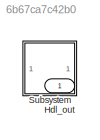
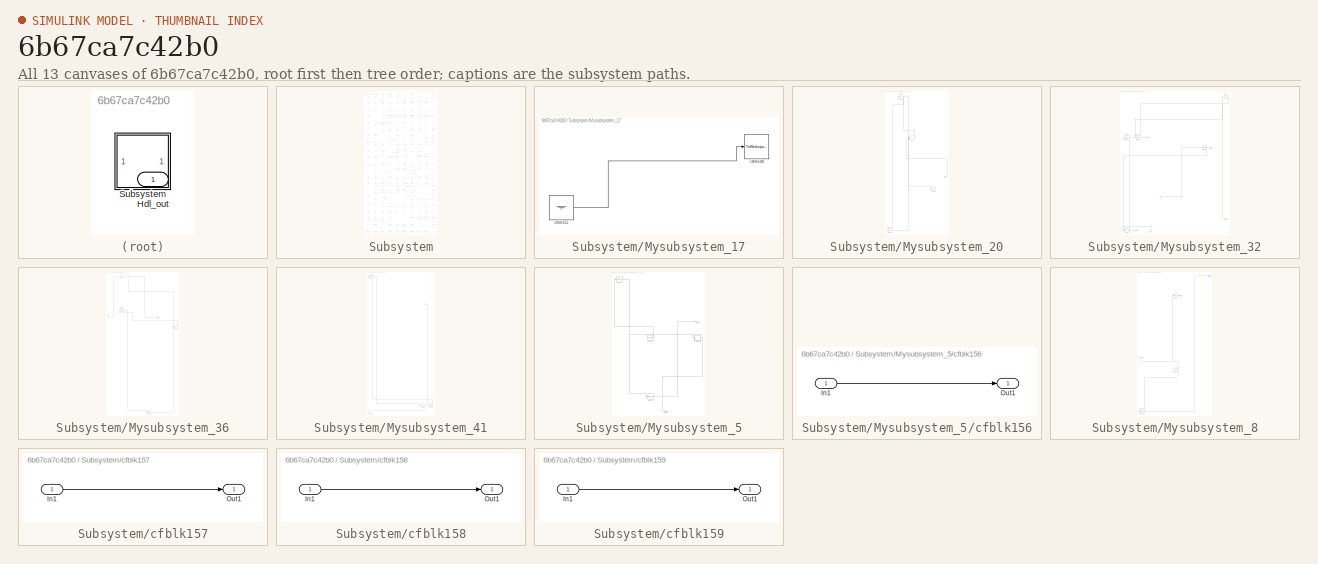
[diagram: thumbnail index - all 13 canvases of the model, root first then tree order]
MODEL slx_6b67ca7c42b0
KIND model
CONFIG AbsTol = auto
CONFIG EnableMultiTasking = off
CONFIG FixedStep = auto
CONFIG MaxStep = auto
CONFIG MinStep = auto
CONFIG RelTol = 1e-3
CONFIG SampleTimeConstraint = Unconstrained
CONFIG SolverName = VariableStepAuto
CONFIG StartTime = 0.0
CONFIG StopTime = 10.0
BLOCK [Outport] Hdl_out
  OutDataTypeStr = uint8
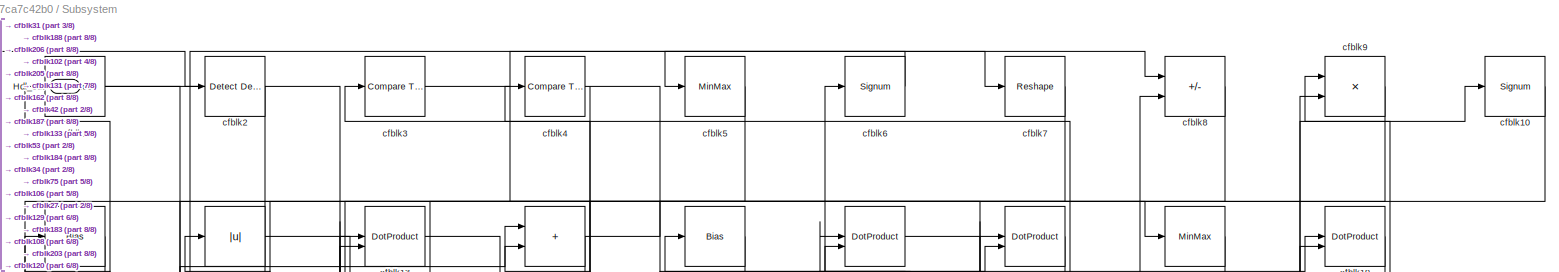
[diagram: Subsystem - part 1/8, full width, top band]
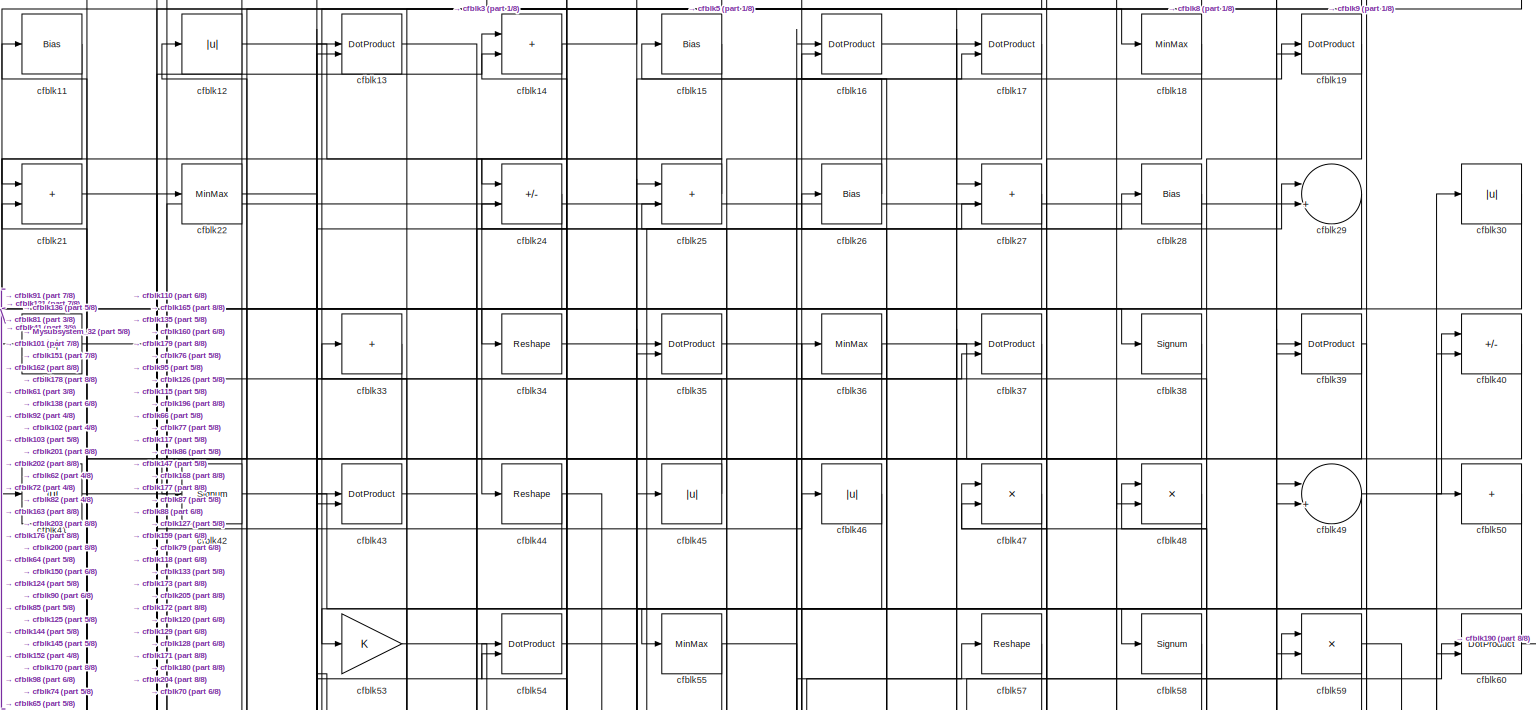
[diagram: Subsystem - part 2/8, full width, top band]
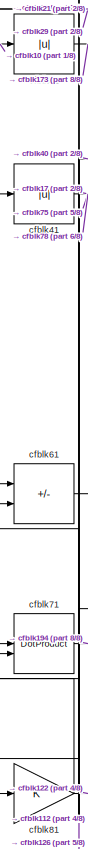
[diagram: Subsystem - part 3/8, top left region]
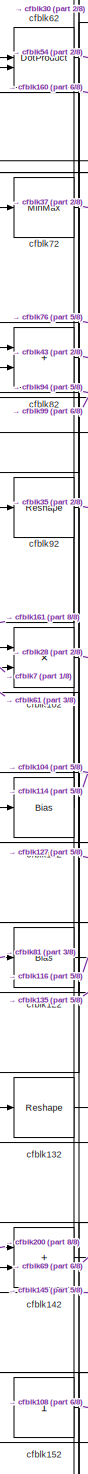
[diagram: Subsystem - part 4/8, middle left region]
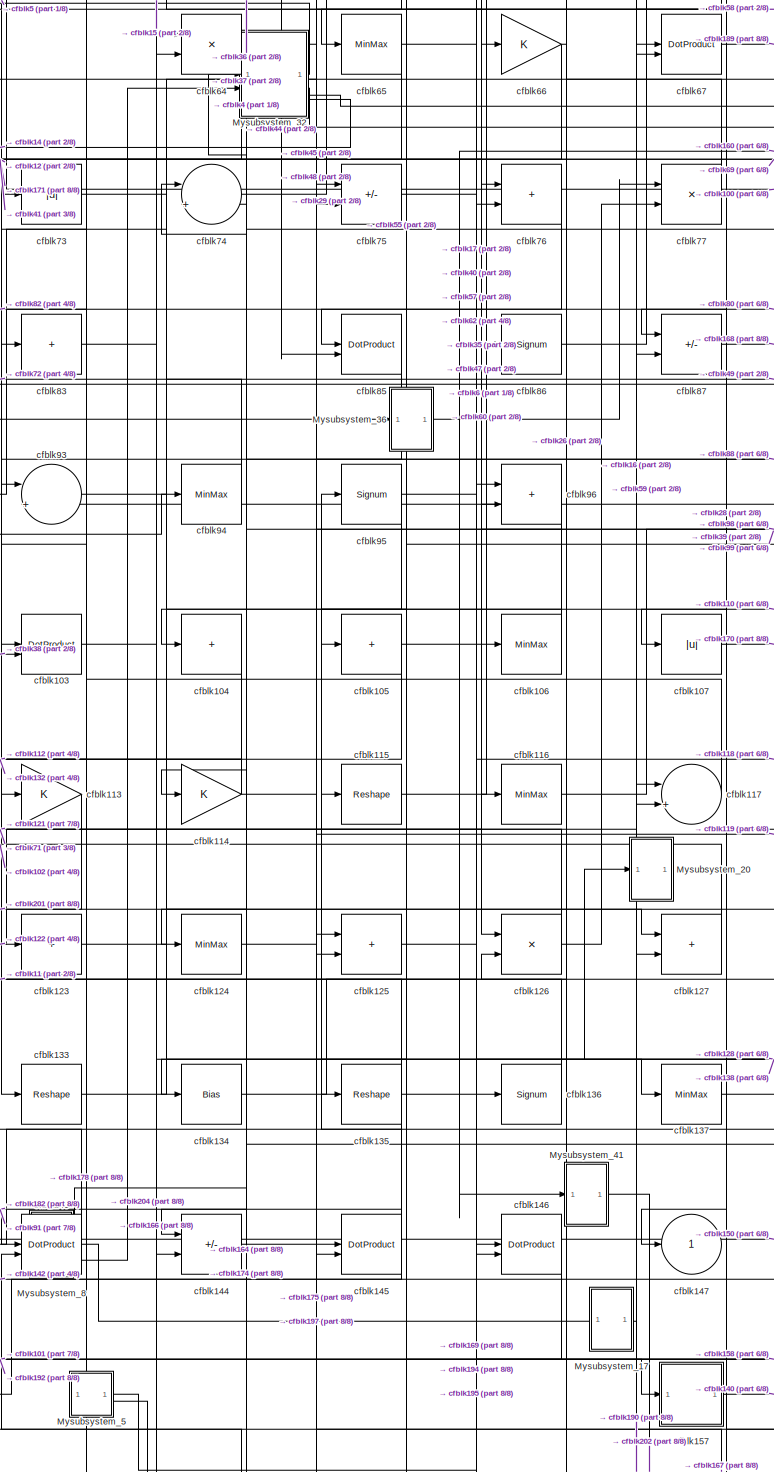
[diagram: Subsystem - part 5/8, central region]
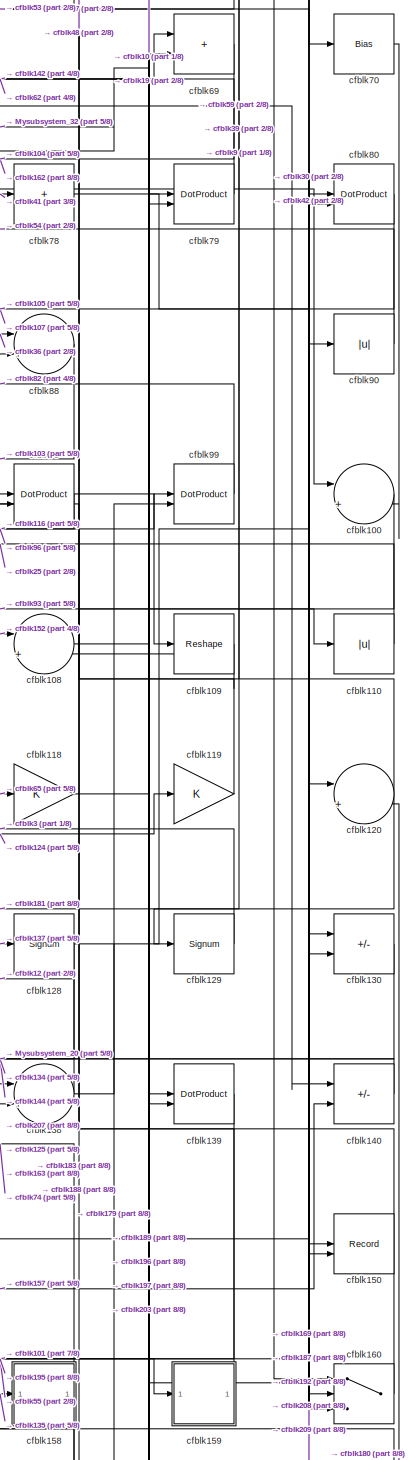
[diagram: Subsystem - part 6/8, middle right region]
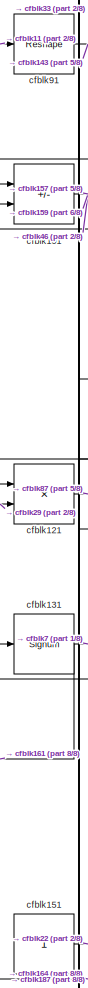
[diagram: Subsystem - part 7/8, middle left region]
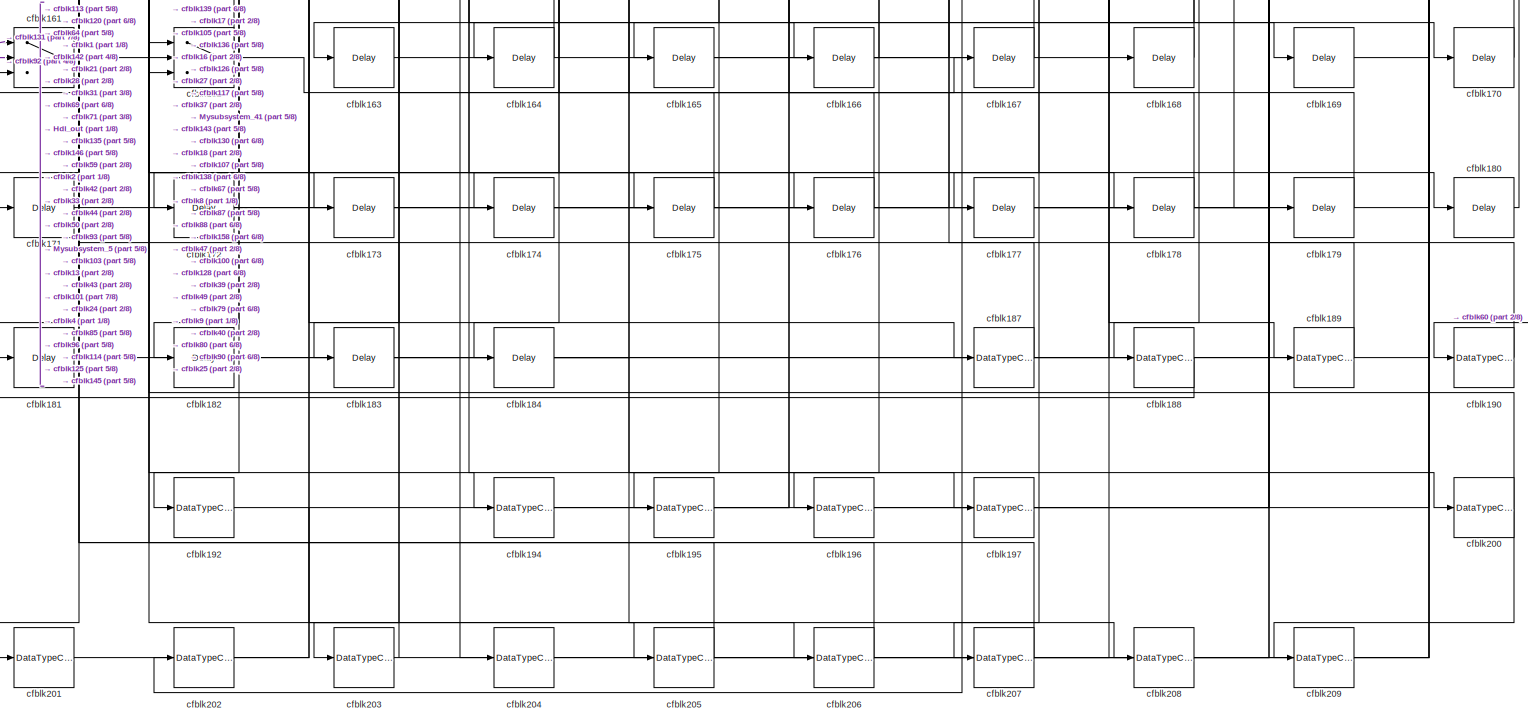
[diagram: Subsystem - part 8/8, full width, bottom band]
BLOCK [SubSystem] Subsystem
BLOCK [Outport] Subsystem/Hdl_out
  OutDataTypeStr = uint8
  Port = 2
BLOCK [SubSystem] Subsystem/Mysubsystem_17
  RTWFcnName = Mysubsystem_17
  RTWFcnNameOpts = User specified
  RTWFileNameOpts = Use function name
  RTWSystemCode = Reusable function
  TreatAsAtomicUnit = on
BLOCK [ToWorkspace] Subsystem/Mysubsystem_17/cfblk148
  MaxDataPoints = inf
  SampleTime = -1
  SaveFormat = Timeseries
  VariableName = simout
BLOCK [Ground] Subsystem/Mysubsystem_17/cfblk155
BLOCK [SubSystem] Subsystem/Mysubsystem_20
  RTWFcnName = Mysubsystem_20
  RTWFcnNameOpts = User specified
  RTWFileNameOpts = Use function name
  RTWSystemCode = Reusable function
  TreatAsAtomicUnit = on
BLOCK [Inport] Subsystem/Mysubsystem_20/In1
BLOCK [Scope] Subsystem/Mysubsystem_20/cfblk149
  Floating = off
  NumInputPorts = 1
  ScopeSpecificationString = Simulink.scopes.TimeScopeBlockCfg('CurrentConfiguration', extmgr.ConfigurationSet(extmgr.Configuration('Core','General UI',true),extmgr.Configuration('Core','Source UI',true),extmgr.Configuration('Sources','WiredSimulink',true,'DataLoggingVariableName','ScopeData2','DataLoggingSaveFormat','Array','DataLoggingLimitDataPoints',true,'DataLoggingDecimation','1'),extmgr.Configuration('Visuals','Time Do...<+868ch>
BLOCK [Delay] Subsystem/Mysubsystem_20/cfblk185
  InputPortMap = u0
  SampleTime = 1
BLOCK [Abs] Subsystem/Mysubsystem_20/cfblk56
  SaturateOnIntegerOverflow = off
BLOCK [Sum] Subsystem/Mysubsystem_20/cfblk97
  IconShape = rectangular
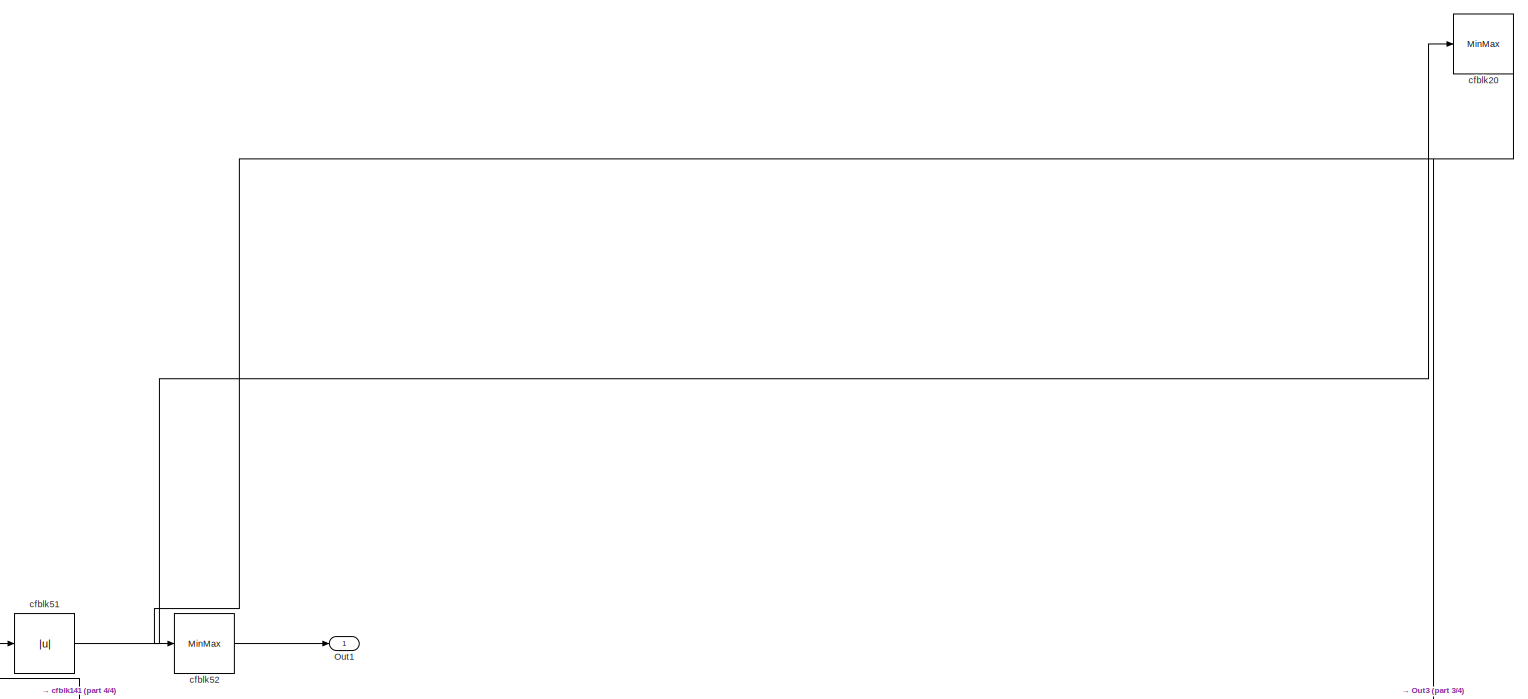
[diagram: Subsystem/Mysubsystem_32 - part 1/4, full width, top band]
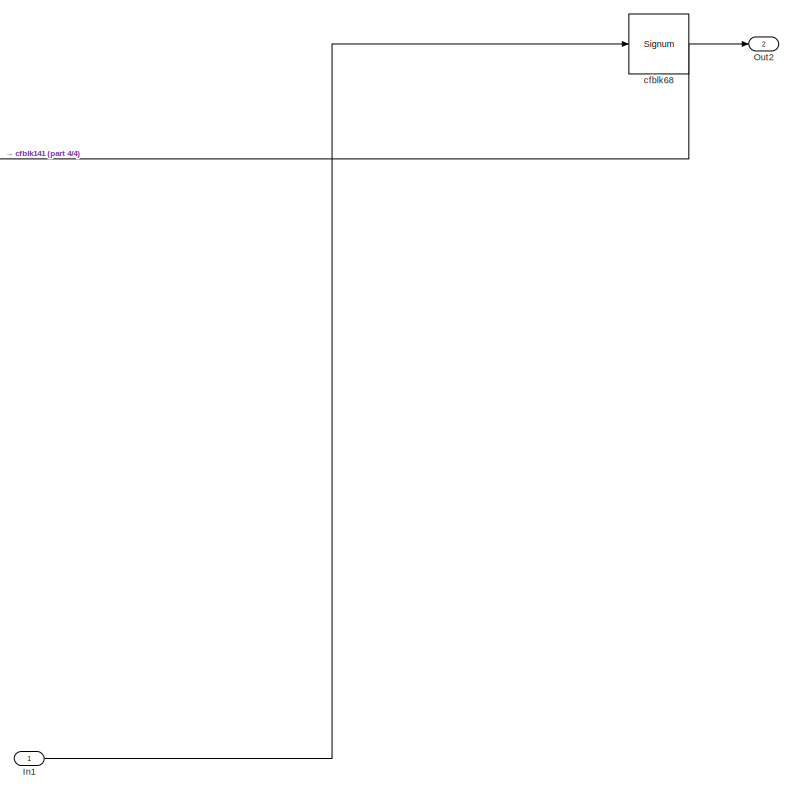
[diagram: Subsystem/Mysubsystem_32 - part 2/4, central region]
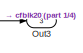
[diagram: Subsystem/Mysubsystem_32 - part 3/4, bottom right region]
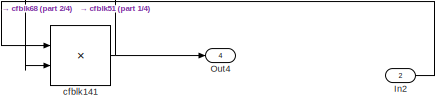
[diagram: Subsystem/Mysubsystem_32 - part 4/4, bottom left region]
BLOCK [SubSystem] Subsystem/Mysubsystem_32
  RTWFcnName = Mysubsystem_32
  RTWFcnNameOpts = User specified
  RTWFileNameOpts = Use function name
  RTWSystemCode = Reusable function
  TreatAsAtomicUnit = on
BLOCK [Inport] Subsystem/Mysubsystem_32/In1
BLOCK [Inport] Subsystem/Mysubsystem_32/In2
  Port = 2
BLOCK [Outport] Subsystem/Mysubsystem_32/Out1
BLOCK [Outport] Subsystem/Mysubsystem_32/Out2
  Port = 2
BLOCK [Outport] Subsystem/Mysubsystem_32/Out3
  Port = 3
BLOCK [Outport] Subsystem/Mysubsystem_32/Out4
  Port = 4
BLOCK [Product] Subsystem/Mysubsystem_32/cfblk141
  Inputs = */
  RndMeth = Zero
  SaturateOnIntegerOverflow = on
BLOCK [MinMax] Subsystem/Mysubsystem_32/cfblk20
BLOCK [Abs] Subsystem/Mysubsystem_32/cfblk51
  SaturateOnIntegerOverflow = off
BLOCK [MinMax] Subsystem/Mysubsystem_32/cfblk52
BLOCK [Signum] Subsystem/Mysubsystem_32/cfblk68
BLOCK [SubSystem] Subsystem/Mysubsystem_36
  RTWFcnName = Mysubsystem_36
  RTWFcnNameOpts = User specified
  RTWFileNameOpts = Use function name
  RTWSystemCode = Reusable function
  TreatAsAtomicUnit = on
BLOCK [Inport] Subsystem/Mysubsystem_36/In1
BLOCK [Outport] Subsystem/Mysubsystem_36/Out1
BLOCK [Delay] Subsystem/Mysubsystem_36/cfblk186
  InputPortMap = u0
  SampleTime = 1
BLOCK [Sum] Subsystem/Mysubsystem_36/cfblk23
  IconShape = rectangular
  Inputs = +
BLOCK [Signum] Subsystem/Mysubsystem_36/cfblk63
BLOCK [Sum] Subsystem/Mysubsystem_36/cfblk89
  IconShape = rectangular
  Inputs = +-
BLOCK [SubSystem] Subsystem/Mysubsystem_41
  RTWFcnName = Mysubsystem_41
  RTWFcnNameOpts = User specified
  RTWFileNameOpts = Use function name
  RTWSystemCode = Reusable function
  TreatAsAtomicUnit = on
BLOCK [Inport] Subsystem/Mysubsystem_41/In1
BLOCK [Outport] Subsystem/Mysubsystem_41/Out1
BLOCK [DataTypeConversion] Subsystem/Mysubsystem_41/cfblk198
  OutDataTypeStr = uint8
  RndMeth = Floor
  SaturateOnIntegerOverflow = off
BLOCK [DataTypeConversion] Subsystem/Mysubsystem_41/cfblk199
  OutDataTypeStr = uint8
  RndMeth = Floor
  SaturateOnIntegerOverflow = off
BLOCK [MinMax] Subsystem/Mysubsystem_41/cfblk32
BLOCK [SubSystem] Subsystem/Mysubsystem_5
  RTWFcnName = Mysubsystem_5
  RTWFcnNameOpts = User specified
  RTWFileNameOpts = Use function name
  RTWSystemCode = Reusable function
  TreatAsAtomicUnit = on
BLOCK [Outport] Subsystem/Mysubsystem_5/Out1
BLOCK [Outport] Subsystem/Mysubsystem_5/Out2
  Port = 2
BLOCK [MinMax] Subsystem/Mysubsystem_5/cfblk111
BLOCK [Reference] Subsystem/Mysubsystem_5/cfblk153  REF=hdlsllib/Sources/Counter
Free-Running
  SourceBlock = hdlsllib/Sources/Counter\nFree-Running
  SourceType = Counter Free-Running
BLOCK [SubSystem] Subsystem/Mysubsystem_5/cfblk156
  LibrarySourceBlock = hdlsllib/Ports &\nSubsystems/Subsystem
BLOCK [Inport] Subsystem/Mysubsystem_5/cfblk156/In1
BLOCK [Outport] Subsystem/Mysubsystem_5/cfblk156/Out1
BLOCK [DataTypeConversion] Subsystem/Mysubsystem_5/cfblk193
  OutDataTypeStr = uint8
  RndMeth = Floor
  SaturateOnIntegerOverflow = off
BLOCK [SubSystem] Subsystem/Mysubsystem_8
  RTWFcnName = Mysubsystem_8
  RTWFcnNameOpts = User specified
  RTWFileNameOpts = Use function name
  RTWSystemCode = Reusable function
  TreatAsAtomicUnit = on
BLOCK [Outport] Subsystem/Mysubsystem_8/Out1
BLOCK [Outport] Subsystem/Mysubsystem_8/Out2
  Port = 2
BLOCK [Reference] Subsystem/Mysubsystem_8/cfblk154  REF=hdlsllib/Sources/Counter
Limited
  SourceBlock = hdlsllib/Sources/Counter\nLimited
  SourceType = Counter Limited
BLOCK [DataTypeConversion] Subsystem/Mysubsystem_8/cfblk191
  OutDataTypeStr = uint8
  RndMeth = Floor
  SaturateOnIntegerOverflow = off
BLOCK [Signum] Subsystem/Mysubsystem_8/cfblk84
BLOCK [Outport] Subsystem/Mysubsystem_8/y
  Port = 3
BLOCK [Reference] Subsystem/cfblk1  REF=hdlsllib/Logic and Bit
Operations/Bit Slice
  SourceBlock = hdlsllib/Logic and Bit\nOperations/Bit Slice
  SourceType = Bit Slice
BLOCK [Signum] Subsystem/cfblk10
BLOCK [Sum] Subsystem/cfblk100
  Inputs = |++
  OutDataTypeStr = uint8
BLOCK [Sum] Subsystem/cfblk101
  IconShape = rectangular
  Inputs = +-
  OutDataTypeStr = uint8
BLOCK [Product] Subsystem/cfblk102
  Inputs = */
  OutDataTypeStr = uint8
  RndMeth = Zero
  SaturateOnIntegerOverflow = on
BLOCK [DotProduct] Subsystem/cfblk103
  OutDataTypeStr = uint8
BLOCK [Sum] Subsystem/cfblk104
  IconShape = rectangular
  Inputs = +
  OutDataTypeStr = uint8
BLOCK [Sum] Subsystem/cfblk105
  IconShape = rectangular
  Inputs = +
  OutDataTypeStr = uint8
BLOCK [MinMax] Subsystem/cfblk106
  OutDataTypeStr = uint8
BLOCK [Abs] Subsystem/cfblk107
  OutDataTypeStr = uint8
  SaturateOnIntegerOverflow = off
BLOCK [Sum] Subsystem/cfblk108
  Inputs = |++
  OutDataTypeStr = uint8
BLOCK [Reshape] Subsystem/cfblk109
BLOCK [Bias] Subsystem/cfblk11
  Bias = 0.0
  SaturateOnIntegerOverflow = off
BLOCK [Abs] Subsystem/cfblk110
  OutDataTypeStr = uint8
  SaturateOnIntegerOverflow = off
BLOCK [Bias] Subsystem/cfblk112
  Bias = 0.0
  SaturateOnIntegerOverflow = off
BLOCK [Gain] Subsystem/cfblk113
  OutDataTypeStr = uint8
BLOCK [Gain] Subsystem/cfblk114
  OutDataTypeStr = uint8
BLOCK [Reshape] Subsystem/cfblk115
BLOCK [MinMax] Subsystem/cfblk116
  OutDataTypeStr = uint8
BLOCK [Sum] Subsystem/cfblk117
  Inputs = |++
  OutDataTypeStr = uint8
BLOCK [Gain] Subsystem/cfblk118
  OutDataTypeStr = uint8
BLOCK [Gain] Subsystem/cfblk119
  OutDataTypeStr = uint8
BLOCK [Abs] Subsystem/cfblk12
  OutDataTypeStr = uint8
  SaturateOnIntegerOverflow = off
BLOCK [Sum] Subsystem/cfblk120
  Inputs = |++
  OutDataTypeStr = uint8
BLOCK [Product] Subsystem/cfblk121
  Inputs = */
  OutDataTypeStr = uint8
  RndMeth = Zero
  SaturateOnIntegerOverflow = on
BLOCK [Bias] Subsystem/cfblk122
  Bias = 0.0
  SaturateOnIntegerOverflow = off
BLOCK [Sum] Subsystem/cfblk123
  IconShape = rectangular
  Inputs = +
  OutDataTypeStr = uint8
BLOCK [MinMax] Subsystem/cfblk124
  OutDataTypeStr = uint8
BLOCK [Sum] Subsystem/cfblk125
  IconShape = rectangular
  OutDataTypeStr = uint8
BLOCK [Product] Subsystem/cfblk126
  Inputs = */
  OutDataTypeStr = uint8
  RndMeth = Zero
  SaturateOnIntegerOverflow = on
BLOCK [Sum] Subsystem/cfblk127
  IconShape = rectangular
  OutDataTypeStr = uint8
BLOCK [Signum] Subsystem/cfblk128
BLOCK [Signum] Subsystem/cfblk129
BLOCK [DotProduct] Subsystem/cfblk13
  OutDataTypeStr = uint8
BLOCK [Sum] Subsystem/cfblk130
  IconShape = rectangular
  Inputs = +-
  OutDataTypeStr = uint8
BLOCK [Signum] Subsystem/cfblk131
BLOCK [Reshape] Subsystem/cfblk132
BLOCK [Reshape] Subsystem/cfblk133
BLOCK [Bias] Subsystem/cfblk134
  Bias = 0.0
  SaturateOnIntegerOverflow = off
BLOCK [Reshape] Subsystem/cfblk135
BLOCK [Signum] Subsystem/cfblk136
BLOCK [MinMax] Subsystem/cfblk137
  OutDataTypeStr = uint8
BLOCK [Sum] Subsystem/cfblk138
  Inputs = |++
  OutDataTypeStr = uint8
BLOCK [DotProduct] Subsystem/cfblk139
  OutDataTypeStr = uint8
BLOCK [Sum] Subsystem/cfblk14
  IconShape = rectangular
  OutDataTypeStr = uint8
BLOCK [Sum] Subsystem/cfblk140
  IconShape = rectangular
  Inputs = +-
  OutDataTypeStr = uint8
BLOCK [Sum] Subsystem/cfblk142
  IconShape = rectangular
  OutDataTypeStr = uint8
BLOCK [DotProduct] Subsystem/cfblk143
  OutDataTypeStr = uint8
BLOCK [Sum] Subsystem/cfblk144
  IconShape = rectangular
  Inputs = +-
  OutDataTypeStr = uint8
BLOCK [DotProduct] Subsystem/cfblk145
  OutDataTypeStr = uint8
BLOCK [DotProduct] Subsystem/cfblk146
  OutDataTypeStr = uint8
BLOCK [Outport] Subsystem/cfblk147
  OutDataTypeStr = uint8
  VectorParamsAs1DForOutWhenUnconnected = off
BLOCK [Bias] Subsystem/cfblk15
  Bias = 0.0
  SaturateOnIntegerOverflow = off
BLOCK [Record] Subsystem/cfblk150
  CompatibilityTag = XY
  FileSettingsInternal = {"entries":[{"content":{"excelSettings":{"content":{},"type":"Streamout.ExcelSettings"}},"type":"Streamout.FileSettingStorage","uuid":""}],"packageUris":["http:\/\/schema.mathworks.com\/mf0\/streamout_blocks\/R2020a"],"version":"1.0"}
  Layout = [1 1]
  SignalsInternal = {"entries":[{"content":{"signals":[{"content":{"blockPath":[],"dimensions":[1],"domain":"","lineColor":"#a2142f","plots":[1],"port":1,"signalID":10674,"signalName":"cfblk53"},"type":"RecordBlkView.Signal","uuid":""},{"content":{"blockPath":[],"dimensions":[1],"domain":"","lineColor":"#139fff","plots":[1],"port":2,"signalID":10677,"signalName":"cfblk52"},"type":"RecordBlkView.Signal","uuid":""}]},"...<+142ch>
  VisualizationBindings = {"xyplotplugin":{"info":[{"series":[{"bindingParametersList":[{"parameter":"X-Axis","signalID":10674,"signalName":"cfblk53"},{"parameter":"Y-Axis","signalID":10677,"signalName":"cfblk52"}],"seriesID":14458}],"subplotID":1}]}}
  st = -1
BLOCK [Constant] Subsystem/cfblk151
  OutDataTypeStr = uint8
  SampleTime = -1
BLOCK [Constant] Subsystem/cfblk152
  OutDataTypeStr = uint8
  SampleTime = -1
BLOCK [SubSystem] Subsystem/cfblk157
  LibrarySourceBlock = hdlsllib/Ports &\nSubsystems/Subsystem
BLOCK [Inport] Subsystem/cfblk157/In1
BLOCK [Outport] Subsystem/cfblk157/Out1
BLOCK [SubSystem] Subsystem/cfblk158
  LibrarySourceBlock = hdlsllib/Ports &\nSubsystems/Subsystem
BLOCK [Inport] Subsystem/cfblk158/In1
BLOCK [Outport] Subsystem/cfblk158/Out1
BLOCK [SubSystem] Subsystem/cfblk159
  LibrarySourceBlock = hdlsllib/Ports &\nSubsystems/Subsystem
BLOCK [Inport] Subsystem/cfblk159/In1
BLOCK [Outport] Subsystem/cfblk159/Out1
BLOCK [DotProduct] Subsystem/cfblk16
  OutDataTypeStr = uint8
BLOCK [Switch] Subsystem/cfblk160
  InputSameDT = off
  OutDataTypeStr = uint8
  SaturateOnIntegerOverflow = off
BLOCK [Switch] Subsystem/cfblk161
  InputSameDT = off
  OutDataTypeStr = uint8
  SaturateOnIntegerOverflow = off
BLOCK [Switch] Subsystem/cfblk162
  InputSameDT = off
  OutDataTypeStr = uint8
  SaturateOnIntegerOverflow = off
BLOCK [Delay] Subsystem/cfblk163
  InputPortMap = u0
  SampleTime = 1
BLOCK [Delay] Subsystem/cfblk164
  InputPortMap = u0
  SampleTime = 1
BLOCK [Delay] Subsystem/cfblk165
  InputPortMap = u0
  SampleTime = 1
BLOCK [Delay] Subsystem/cfblk166
  InputPortMap = u0
  SampleTime = 1
BLOCK [Delay] Subsystem/cfblk167
  InputPortMap = u0
  SampleTime = 1
BLOCK [Delay] Subsystem/cfblk168
  InputPortMap = u0
  SampleTime = 1
BLOCK [Delay] Subsystem/cfblk169
  InputPortMap = u0
  SampleTime = 1
BLOCK [DotProduct] Subsystem/cfblk17
  OutDataTypeStr = uint8
BLOCK [Delay] Subsystem/cfblk170
  InputPortMap = u0
  SampleTime = 1
BLOCK [Delay] Subsystem/cfblk171
  InputPortMap = u0
  SampleTime = 1
BLOCK [Delay] Subsystem/cfblk172
  InputPortMap = u0
  SampleTime = 1
BLOCK [Delay] Subsystem/cfblk173
  InputPortMap = u0
  SampleTime = 1
BLOCK [Delay] Subsystem/cfblk174
  InputPortMap = u0
  SampleTime = 1
BLOCK [Delay] Subsystem/cfblk175
  InputPortMap = u0
  SampleTime = 1
BLOCK [Delay] Subsystem/cfblk176
  InputPortMap = u0
  SampleTime = 1
BLOCK [Delay] Subsystem/cfblk177
  InputPortMap = u0
  SampleTime = 1
BLOCK [Delay] Subsystem/cfblk178
  InputPortMap = u0
  SampleTime = 1
BLOCK [Delay] Subsystem/cfblk179
  InputPortMap = u0
  SampleTime = 1
BLOCK [MinMax] Subsystem/cfblk18
  OutDataTypeStr = uint8
BLOCK [Delay] Subsystem/cfblk180
  InputPortMap = u0
  SampleTime = 1
BLOCK [Delay] Subsystem/cfblk181
  InputPortMap = u0
  SampleTime = 1
BLOCK [Delay] Subsystem/cfblk182
  InputPortMap = u0
  SampleTime = 1
BLOCK [Delay] Subsystem/cfblk183
  InputPortMap = u0
  SampleTime = 1
BLOCK [Delay] Subsystem/cfblk184
  InputPortMap = u0
  SampleTime = 1
BLOCK [DataTypeConversion] Subsystem/cfblk187
  OutDataTypeStr = uint8
  RndMeth = Floor
  SaturateOnIntegerOverflow = off
BLOCK [DataTypeConversion] Subsystem/cfblk188
  OutDataTypeStr = uint8
  RndMeth = Floor
  SaturateOnIntegerOverflow = off
BLOCK [DataTypeConversion] Subsystem/cfblk189
  OutDataTypeStr = uint8
  RndMeth = Floor
  SaturateOnIntegerOverflow = off
BLOCK [DotProduct] Subsystem/cfblk19
  OutDataTypeStr = uint8
BLOCK [DataTypeConversion] Subsystem/cfblk190
  OutDataTypeStr = uint8
  RndMeth = Floor
  SaturateOnIntegerOverflow = off
BLOCK [DataTypeConversion] Subsystem/cfblk192
  OutDataTypeStr = uint8
  RndMeth = Floor
  SaturateOnIntegerOverflow = off
BLOCK [DataTypeConversion] Subsystem/cfblk194
  OutDataTypeStr = uint8
  RndMeth = Floor
  SaturateOnIntegerOverflow = off
BLOCK [DataTypeConversion] Subsystem/cfblk195
  OutDataTypeStr = uint8
  RndMeth = Floor
  SaturateOnIntegerOverflow = off
BLOCK [DataTypeConversion] Subsystem/cfblk196
  OutDataTypeStr = uint8
  RndMeth = Floor
  SaturateOnIntegerOverflow = off
BLOCK [DataTypeConversion] Subsystem/cfblk197
  OutDataTypeStr = uint8
  RndMeth = Floor
  SaturateOnIntegerOverflow = off
BLOCK [Reference] Subsystem/cfblk2  REF=simulink/Logic and Bit
Operations/Detect
Decrease
  LibrarySourceBlock = hdlsllib/Logic and Bit\nOperations/Detect\nDecrease
  SourceBlock = simulink/Logic and Bit\nOperations/Detect\nDecrease
  SourceType = Detect Decrease
BLOCK [DataTypeConversion] Subsystem/cfblk200
  OutDataTypeStr = uint8
  RndMeth = Floor
  SaturateOnIntegerOverflow = off
BLOCK [DataTypeConversion] Subsystem/cfblk201
  OutDataTypeStr = uint8
  RndMeth = Floor
  SaturateOnIntegerOverflow = off
BLOCK [DataTypeConversion] Subsystem/cfblk202
  OutDataTypeStr = uint8
  RndMeth = Floor
  SaturateOnIntegerOverflow = off
BLOCK [DataTypeConversion] Subsystem/cfblk203
  OutDataTypeStr = uint8
  RndMeth = Floor
  SaturateOnIntegerOverflow = off
BLOCK [DataTypeConversion] Subsystem/cfblk204
  OutDataTypeStr = uint8
  RndMeth = Floor
  SaturateOnIntegerOverflow = off
BLOCK [DataTypeConversion] Subsystem/cfblk205
  OutDataTypeStr = uint8
  RndMeth = Floor
  SaturateOnIntegerOverflow = off
BLOCK [DataTypeConversion] Subsystem/cfblk206
  OutDataTypeStr = uint8
  RndMeth = Floor
  SaturateOnIntegerOverflow = off
BLOCK [DataTypeConversion] Subsystem/cfblk207
  OutDataTypeStr = uint8
  RndMeth = Floor
  SaturateOnIntegerOverflow = off
BLOCK [DataTypeConversion] Subsystem/cfblk208
  OutDataTypeStr = uint8
  RndMeth = Floor
  SaturateOnIntegerOverflow = off
BLOCK [DataTypeConversion] Subsystem/cfblk209
  OutDataTypeStr = uint8
  RndMeth = Floor
  SaturateOnIntegerOverflow = off
BLOCK [Sum] Subsystem/cfblk21
  IconShape = rectangular
  OutDataTypeStr = uint8
BLOCK [MinMax] Subsystem/cfblk22
  OutDataTypeStr = uint8
BLOCK [Sum] Subsystem/cfblk24
  IconShape = rectangular
  Inputs = +-
  OutDataTypeStr = uint8
BLOCK [Sum] Subsystem/cfblk25
  IconShape = rectangular
  OutDataTypeStr = uint8
BLOCK [Bias] Subsystem/cfblk26
  Bias = 0.0
  SaturateOnIntegerOverflow = off
BLOCK [Sum] Subsystem/cfblk27
  IconShape = rectangular
  OutDataTypeStr = uint8
BLOCK [Bias] Subsystem/cfblk28
  Bias = 0.0
  SaturateOnIntegerOverflow = off
BLOCK [Sum] Subsystem/cfblk29
  Inputs = |++
  OutDataTypeStr = uint8
BLOCK [Reference] Subsystem/cfblk3  REF=hdlsllib/Logic and Bit
Operations/Compare
To Zero
  SourceBlock = hdlsllib/Logic and Bit\nOperations/Compare\nTo Zero
  SourceType = Compare To Zero
BLOCK [Abs] Subsystem/cfblk30
  OutDataTypeStr = uint8
  SaturateOnIntegerOverflow = off
BLOCK [Abs] Subsystem/cfblk31
  OutDataTypeStr = uint8
  SaturateOnIntegerOverflow = off
BLOCK [Sum] Subsystem/cfblk33
  IconShape = rectangular
  Inputs = +
  OutDataTypeStr = uint8
BLOCK [Reshape] Subsystem/cfblk34
BLOCK [DotProduct] Subsystem/cfblk35
  OutDataTypeStr = uint8
BLOCK [MinMax] Subsystem/cfblk36
  OutDataTypeStr = uint8
BLOCK [DotProduct] Subsystem/cfblk37
  OutDataTypeStr = uint8
BLOCK [Signum] Subsystem/cfblk38
BLOCK [DotProduct] Subsystem/cfblk39
  OutDataTypeStr = uint8
BLOCK [Reference] Subsystem/cfblk4  REF=hdlsllib/Logic and Bit
Operations/Compare
To Constant
  SourceBlock = hdlsllib/Logic and Bit\nOperations/Compare\nTo Constant
  SourceType = Compare To Constant
BLOCK [Sum] Subsystem/cfblk40
  IconShape = rectangular
  Inputs = +-
  OutDataTypeStr = uint8
BLOCK [Abs] Subsystem/cfblk41
  OutDataTypeStr = uint8
  SaturateOnIntegerOverflow = off
BLOCK [Signum] Subsystem/cfblk42
BLOCK [DotProduct] Subsystem/cfblk43
  OutDataTypeStr = uint8
BLOCK [Reshape] Subsystem/cfblk44
BLOCK [Abs] Subsystem/cfblk45
  OutDataTypeStr = uint8
  SaturateOnIntegerOverflow = off
BLOCK [Abs] Subsystem/cfblk46
  OutDataTypeStr = uint8
  SaturateOnIntegerOverflow = off
BLOCK [Product] Subsystem/cfblk47
  Inputs = */
  OutDataTypeStr = uint8
  RndMeth = Zero
  SaturateOnIntegerOverflow = on
BLOCK [Product] Subsystem/cfblk48
  Inputs = */
  OutDataTypeStr = uint8
  RndMeth = Zero
  SaturateOnIntegerOverflow = on
BLOCK [Sum] Subsystem/cfblk49
  Inputs = |++
  OutDataTypeStr = uint8
BLOCK [MinMax] Subsystem/cfblk5
  OutDataTypeStr = uint8
BLOCK [Sum] Subsystem/cfblk50
  IconShape = rectangular
  Inputs = +
  OutDataTypeStr = uint8
BLOCK [Gain] Subsystem/cfblk53
  OutDataTypeStr = uint8
BLOCK [DotProduct] Subsystem/cfblk54
  OutDataTypeStr = uint8
BLOCK [MinMax] Subsystem/cfblk55
  OutDataTypeStr = uint8
BLOCK [Reshape] Subsystem/cfblk57
BLOCK [Signum] Subsystem/cfblk58
BLOCK [Product] Subsystem/cfblk59
  Inputs = */
  OutDataTypeStr = uint8
  RndMeth = Zero
  SaturateOnIntegerOverflow = on
BLOCK [Signum] Subsystem/cfblk6
BLOCK [DotProduct] Subsystem/cfblk60
  OutDataTypeStr = uint8
BLOCK [Sum] Subsystem/cfblk61
  IconShape = rectangular
  Inputs = +-
  OutDataTypeStr = uint8
BLOCK [DotProduct] Subsystem/cfblk62
  OutDataTypeStr = uint8
BLOCK [Product] Subsystem/cfblk64
  Inputs = */
  OutDataTypeStr = uint8
  RndMeth = Zero
  SaturateOnIntegerOverflow = on
BLOCK [MinMax] Subsystem/cfblk65
  OutDataTypeStr = uint8
BLOCK [Gain] Subsystem/cfblk66
  OutDataTypeStr = uint8
BLOCK [DotProduct] Subsystem/cfblk67
  OutDataTypeStr = uint8
BLOCK [Sum] Subsystem/cfblk69
  IconShape = rectangular
  OutDataTypeStr = uint8
BLOCK [Reshape] Subsystem/cfblk7
BLOCK [Bias] Subsystem/cfblk70
  Bias = 0.0
  SaturateOnIntegerOverflow = off
BLOCK [DotProduct] Subsystem/cfblk71
  OutDataTypeStr = uint8
BLOCK [MinMax] Subsystem/cfblk72
  OutDataTypeStr = uint8
BLOCK [Abs] Subsystem/cfblk73
  OutDataTypeStr = uint8
  SaturateOnIntegerOverflow = off
BLOCK [Sum] Subsystem/cfblk74
  Inputs = |++
  OutDataTypeStr = uint8
BLOCK [Sum] Subsystem/cfblk75
  IconShape = rectangular
  Inputs = +-
  OutDataTypeStr = uint8
BLOCK [Sum] Subsystem/cfblk76
  IconShape = rectangular
  OutDataTypeStr = uint8
BLOCK [Product] Subsystem/cfblk77
  Inputs = */
  OutDataTypeStr = uint8
  RndMeth = Zero
  SaturateOnIntegerOverflow = on
BLOCK [Sum] Subsystem/cfblk78
  IconShape = rectangular
  Inputs = +
  OutDataTypeStr = uint8
BLOCK [DotProduct] Subsystem/cfblk79
  OutDataTypeStr = uint8
BLOCK [Sum] Subsystem/cfblk8
  IconShape = rectangular
  Inputs = +-
  OutDataTypeStr = uint8
BLOCK [DotProduct] Subsystem/cfblk80
  OutDataTypeStr = uint8
BLOCK [Gain] Subsystem/cfblk81
  OutDataTypeStr = uint8
BLOCK [Sum] Subsystem/cfblk82
  IconShape = rectangular
  OutDataTypeStr = uint8
BLOCK [Sum] Subsystem/cfblk83
  IconShape = rectangular
  Inputs = +
  OutDataTypeStr = uint8
BLOCK [DotProduct] Subsystem/cfblk85
  OutDataTypeStr = uint8
BLOCK [Signum] Subsystem/cfblk86
BLOCK [Sum] Subsystem/cfblk87
  IconShape = rectangular
  Inputs = +-
  OutDataTypeStr = uint8
BLOCK [Sum] Subsystem/cfblk88
  Inputs = |++
  OutDataTypeStr = uint8
BLOCK [Product] Subsystem/cfblk9
  Inputs = */
  OutDataTypeStr = uint8
  RndMeth = Zero
  SaturateOnIntegerOverflow = on
BLOCK [Abs] Subsystem/cfblk90
  OutDataTypeStr = uint8
  SaturateOnIntegerOverflow = off
BLOCK [Reshape] Subsystem/cfblk91
BLOCK [Reshape] Subsystem/cfblk92
BLOCK [Sum] Subsystem/cfblk93
  Inputs = |++
  OutDataTypeStr = uint8
BLOCK [MinMax] Subsystem/cfblk94
  OutDataTypeStr = uint8
BLOCK [Signum] Subsystem/cfblk95
BLOCK [Sum] Subsystem/cfblk96
  IconShape = rectangular
  OutDataTypeStr = uint8
BLOCK [DotProduct] Subsystem/cfblk98
  OutDataTypeStr = uint8
BLOCK [DotProduct] Subsystem/cfblk99
  OutDataTypeStr = uint8
LINE Subsystem/Mysubsystem_17/cfblk155:1 -> Subsystem/Mysubsystem_17/cfblk148:1
LINE Subsystem/Mysubsystem_20/In1:1 -> Subsystem/Mysubsystem_20/cfblk97:2
LINE Subsystem/Mysubsystem_20/cfblk185:1 -> Subsystem/Mysubsystem_20/cfblk97:1
NET Subsystem/Mysubsystem_20/cfblk56:1 -> Subsystem/Mysubsystem_20/cfblk149:1, Subsystem/Mysubsystem_20/cfblk185:1
LINE Subsystem/Mysubsystem_20/cfblk97:1 -> Subsystem/Mysubsystem_20/cfblk56:1
LINE Subsystem/Mysubsystem_32/In1:1 -> Subsystem/Mysubsystem_32/cfblk68:1
LINE Subsystem/Mysubsystem_32/In2:1 -> Subsystem/Mysubsystem_32/cfblk141:1
NET Subsystem/Mysubsystem_32/cfblk141:1 -> Subsystem/Mysubsystem_32/Out4:1, Subsystem/Mysubsystem_32/cfblk51:1
NET Subsystem/Mysubsystem_32/cfblk20:1 -> Subsystem/Mysubsystem_32/Out3:1, Subsystem/Mysubsystem_32/cfblk52:1
LINE Subsystem/Mysubsystem_32/cfblk51:1 -> Subsystem/Mysubsystem_32/cfblk20:1
LINE Subsystem/Mysubsystem_32/cfblk52:1 -> Subsystem/Mysubsystem_32/Out1:1
NET Subsystem/Mysubsystem_32/cfblk68:1 -> Subsystem/Mysubsystem_32/Out2:1, Subsystem/Mysubsystem_32/cfblk141:2
NET Subsystem/Mysubsystem_32:1 -> Subsystem/cfblk100:1, Subsystem/cfblk150:2
NET Subsystem/Mysubsystem_32:2 -> Subsystem/Mysubsystem_41:1, Subsystem/cfblk160:3
LINE Subsystem/Mysubsystem_32:3 -> Subsystem/cfblk140:1
NET Subsystem/Mysubsystem_32:4 -> Subsystem/Mysubsystem_36:1, Subsystem/cfblk14:2
LINE Subsystem/Mysubsystem_36/In1:1 -> Subsystem/Mysubsystem_36/cfblk23:1
LINE Subsystem/Mysubsystem_36/cfblk186:1 -> Subsystem/Mysubsystem_36/cfblk89:1
NET Subsystem/Mysubsystem_36/cfblk23:1 -> Subsystem/Mysubsystem_36/Out1:1, Subsystem/Mysubsystem_36/cfblk89:2
LINE Subsystem/Mysubsystem_36/cfblk63:1 -> Subsystem/Mysubsystem_36/cfblk186:1
LINE Subsystem/Mysubsystem_36/cfblk89:1 -> Subsystem/Mysubsystem_36/cfblk63:1
LINE Subsystem/Mysubsystem_36:1 -> Subsystem/cfblk77:1
LINE Subsystem/Mysubsystem_41/In1:1 -> Subsystem/Mysubsystem_41/cfblk199:1
LINE Subsystem/Mysubsystem_41/cfblk198:1 -> Subsystem/Mysubsystem_41/Out1:1
LINE Subsystem/Mysubsystem_41/cfblk199:1 -> Subsystem/Mysubsystem_41/cfblk32:1
LINE Subsystem/Mysubsystem_41/cfblk32:1 -> Subsystem/Mysubsystem_41/cfblk198:1
LINE Subsystem/Mysubsystem_41:1 -> Subsystem/cfblk202:1
NET Subsystem/Mysubsystem_5/cfblk111:1 -> Subsystem/Mysubsystem_5/cfblk156:1, Subsystem/Mysubsystem_5/cfblk193:1
LINE Subsystem/Mysubsystem_5/cfblk153:1 -> Subsystem/Mysubsystem_5/cfblk111:1
LINE Subsystem/Mysubsystem_5/cfblk156/In1:1 -> Subsystem/Mysubsystem_5/cfblk156/Out1:1
LINE Subsystem/Mysubsystem_5/cfblk156:1 -> Subsystem/Mysubsystem_5/Out2:1
LINE Subsystem/Mysubsystem_5/cfblk193:1 -> Subsystem/Mysubsystem_5/Out1:1
LINE Subsystem/Mysubsystem_5:1 -> Subsystem/cfblk146:1
LINE Subsystem/Mysubsystem_5:2 -> Subsystem/cfblk204:1
NET Subsystem/Mysubsystem_8/cfblk154:1 -> Subsystem/Mysubsystem_8/cfblk191:1, Subsystem/Mysubsystem_8/cfblk84:1, Subsystem/Mysubsystem_8/y:1
LINE Subsystem/Mysubsystem_8/cfblk191:1 -> Subsystem/Mysubsystem_8/Out1:1
LINE Subsystem/Mysubsystem_8/cfblk84:1 -> Subsystem/Mysubsystem_8/Out2:1
LINE Subsystem/Mysubsystem_8:1 -> Subsystem/cfblk67:2
NET Subsystem/Mysubsystem_8:2 -> Subsystem/Mysubsystem_32:1, Subsystem/cfblk114:1
LINE Subsystem/Mysubsystem_8:3 -> Subsystem/Mysubsystem_32:2
LINE Subsystem/cfblk100:1 -> Subsystem/cfblk188:1
NET Subsystem/cfblk101:1 -> Subsystem/cfblk157:1, Subsystem/cfblk159:1, Subsystem/cfblk46:1
LINE Subsystem/cfblk102:1 -> Subsystem/cfblk28:1
LINE Subsystem/cfblk103:1 -> Subsystem/cfblk166:1
LINE Subsystem/cfblk104:1 -> Subsystem/cfblk132:1
NET Subsystem/cfblk105:1 -> Subsystem/cfblk123:1, Subsystem/cfblk169:1
NET Subsystem/cfblk106:1 -> Subsystem/cfblk4:1, Subsystem/cfblk6:1
LINE Subsystem/cfblk107:1 -> Subsystem/cfblk170:1
LINE Subsystem/cfblk108:1 -> Subsystem/cfblk10:1
LINE Subsystem/cfblk109:1 -> Subsystem/cfblk108:2
LINE Subsystem/cfblk10:1 -> Subsystem/cfblk31:1
LINE Subsystem/cfblk110:1 -> Subsystem/cfblk25:2
LINE Subsystem/cfblk112:1 -> Subsystem/cfblk61:1
LINE Subsystem/cfblk113:1 -> Subsystem/cfblk201:1
NET Subsystem/cfblk114:1 -> Subsystem/cfblk112:1, Subsystem/cfblk197:1
LINE Subsystem/cfblk115:1 -> Subsystem/cfblk60:1
LINE Subsystem/cfblk116:1 -> Subsystem/cfblk99:1
LINE Subsystem/cfblk117:1 -> Subsystem/cfblk73:1
LINE Subsystem/cfblk118:1 -> Subsystem/cfblk19:2
LINE Subsystem/cfblk119:1 -> Subsystem/cfblk93:2
LINE Subsystem/cfblk11:1 -> Subsystem/cfblk91:1
NET Subsystem/cfblk120:1 -> Subsystem/cfblk181:1, Subsystem/cfblk47:1, Subsystem/cfblk9:1
LINE Subsystem/cfblk121:1 -> Subsystem/cfblk87:2
LINE Subsystem/cfblk122:1 -> Subsystem/cfblk116:1
LINE Subsystem/cfblk123:1 -> Subsystem/cfblk127:1
NET Subsystem/cfblk124:1 -> Subsystem/cfblk119:1, Subsystem/cfblk144:1
LINE Subsystem/cfblk125:1 -> Subsystem/cfblk138:1
NET Subsystem/cfblk126:1 -> Subsystem/cfblk71:2, Subsystem/cfblk77:2
LINE Subsystem/cfblk127:1 -> Subsystem/cfblk102:1
NET Subsystem/cfblk128:1 -> Subsystem/cfblk144:2, Subsystem/cfblk179:1, Subsystem/cfblk30:1
LINE Subsystem/cfblk129:1 -> Subsystem/cfblk3:1
NET Subsystem/cfblk12:1 -> Subsystem/cfblk44:1, Subsystem/cfblk76:1
LINE Subsystem/cfblk130:1 -> Subsystem/cfblk207:1
NET Subsystem/cfblk131:1 -> Subsystem/cfblk161:1, Subsystem/cfblk7:1
LINE Subsystem/cfblk132:1 -> Subsystem/cfblk94:1
LINE Subsystem/cfblk133:1 -> Subsystem/cfblk49:1
LINE Subsystem/cfblk134:1 -> Subsystem/cfblk106:1
NET Subsystem/cfblk135:1 -> Subsystem/cfblk158:1, Subsystem/cfblk17:2, Subsystem/cfblk182:1, Subsystem/cfblk62:1
LINE Subsystem/cfblk136:1 -> Subsystem/cfblk11:1
LINE Subsystem/cfblk137:1 -> Subsystem/cfblk128:1
NET Subsystem/cfblk138:1 -> Subsystem/cfblk12:1, Subsystem/cfblk99:2
LINE Subsystem/cfblk139:1 -> Subsystem/cfblk195:1
LINE Subsystem/cfblk13:1 -> Subsystem/cfblk200:1
NET Subsystem/cfblk140:1 -> Subsystem/Mysubsystem_20:1, Subsystem/cfblk134:1
LINE Subsystem/cfblk142:1 -> Subsystem/cfblk69:1
LINE Subsystem/cfblk143:1 -> Subsystem/cfblk101:2
NET Subsystem/cfblk144:1 -> Subsystem/cfblk45:1, Subsystem/cfblk98:2
NET Subsystem/cfblk145:1 -> Subsystem/cfblk142:2, Subsystem/cfblk95:1
LINE Subsystem/cfblk146:1 -> Subsystem/cfblk192:1
NET Subsystem/cfblk14:1 -> Subsystem/cfblk18:1, Subsystem/cfblk21:1, Subsystem/cfblk43:2
LINE Subsystem/cfblk151:1 -> Subsystem/cfblk22:1
NET Subsystem/cfblk152:1 -> Subsystem/cfblk108:1, Subsystem/cfblk35:2
LINE Subsystem/cfblk157/In1:1 -> Subsystem/cfblk157/Out1:1
LINE Subsystem/cfblk157:1 -> Subsystem/cfblk140:2
LINE Subsystem/cfblk158/In1:1 -> Subsystem/cfblk158/Out1:1
NET Subsystem/cfblk158:1 -> Subsystem/cfblk183:1, Subsystem/cfblk74:1
LINE Subsystem/cfblk159/In1:1 -> Subsystem/cfblk159/Out1:1
LINE Subsystem/cfblk159:1 -> Subsystem/cfblk36:1
LINE Subsystem/cfblk15:1 -> Subsystem/cfblk64:2
LINE Subsystem/cfblk160:1 -> Subsystem/cfblk62:2
LINE Subsystem/cfblk161:1 -> Subsystem/cfblk175:1
NET Subsystem/cfblk162:1 -> Subsystem/Hdl_out:1, Subsystem/cfblk167:1
LINE Subsystem/cfblk163:1 -> Subsystem/cfblk138:2
LINE Subsystem/cfblk164:1 -> Subsystem/cfblk101:1
LINE Subsystem/cfblk165:1 -> Subsystem/cfblk37:1
LINE Subsystem/cfblk166:1 -> Subsystem/cfblk126:2
LINE Subsystem/cfblk167:1 -> Subsystem/cfblk143:2
LINE Subsystem/cfblk168:1 -> Subsystem/cfblk47:2
LINE Subsystem/cfblk169:1 -> Subsystem/cfblk80:2
LINE Subsystem/cfblk16:1 -> Subsystem/cfblk117:2
LINE Subsystem/cfblk170:1 -> Subsystem/cfblk25:1
LINE Subsystem/cfblk171:1 -> Subsystem/cfblk40:2
LINE Subsystem/cfblk172:1 -> Subsystem/cfblk49:2
LINE Subsystem/cfblk173:1 -> Subsystem/cfblk59:2
LINE Subsystem/cfblk174:1 -> Subsystem/cfblk117:1
LINE Subsystem/cfblk175:1 -> Subsystem/cfblk125:1
LINE Subsystem/cfblk176:1 -> Subsystem/cfblk24:2
LINE Subsystem/cfblk177:1 -> Subsystem/cfblk39:2
LINE Subsystem/cfblk178:1 -> Subsystem/cfblk93:1
LINE Subsystem/cfblk179:1 -> Subsystem/cfblk16:1
LINE Subsystem/cfblk17:1 -> Subsystem/cfblk165:1
LINE Subsystem/cfblk180:1 -> Subsystem/cfblk120:2
LINE Subsystem/cfblk181:1 -> Subsystem/cfblk69:2
LINE Subsystem/cfblk182:1 -> Subsystem/cfblk145:1
LINE Subsystem/cfblk183:1 -> Subsystem/cfblk8:2
LINE Subsystem/cfblk184:1 -> Subsystem/cfblk206:1
NET Subsystem/cfblk187:1 -> Subsystem/cfblk131:1, Subsystem/cfblk90:1
LINE Subsystem/cfblk188:1 -> Subsystem/cfblk2:1
LINE Subsystem/cfblk189:1 -> Subsystem/cfblk79:1
LINE Subsystem/cfblk18:1 -> Subsystem/cfblk177:1
LINE Subsystem/cfblk190:1 -> Subsystem/cfblk67:1
NET Subsystem/cfblk192:1 -> Subsystem/cfblk208:1, Subsystem/cfblk80:1
LINE Subsystem/cfblk194:1 -> Subsystem/cfblk146:2
LINE Subsystem/cfblk195:1 -> Subsystem/cfblk136:1
LINE Subsystem/cfblk196:1 -> Subsystem/cfblk139:1
LINE Subsystem/cfblk197:1 -> Subsystem/cfblk139:2
LINE Subsystem/cfblk19:1 -> Subsystem/cfblk58:1
LINE Subsystem/cfblk1:1 -> Subsystem/cfblk205:1
NET Subsystem/cfblk200:1 -> Subsystem/cfblk142:1, Subsystem/cfblk209:1
LINE Subsystem/cfblk201:1 -> Subsystem/cfblk13:1
LINE Subsystem/cfblk202:1 -> Subsystem/cfblk13:2
NET Subsystem/cfblk203:1 -> Subsystem/cfblk33:1, Subsystem/cfblk79:2, Subsystem/cfblk9:2
LINE Subsystem/cfblk204:1 -> Subsystem/cfblk50:1
NET Subsystem/cfblk205:1 -> Subsystem/cfblk161:3, Subsystem/cfblk39:1
LINE Subsystem/cfblk206:1 -> Subsystem/cfblk1:1
NET Subsystem/cfblk207:1 -> Subsystem/cfblk162:1, Subsystem/cfblk88:2
LINE Subsystem/cfblk208:1 -> Subsystem/cfblk130:1
LINE Subsystem/cfblk209:1 -> Subsystem/cfblk130:2
LINE Subsystem/cfblk21:1 -> Subsystem/cfblk178:1
NET Subsystem/cfblk22:1 -> Subsystem/cfblk38:1, Subsystem/cfblk48:2
LINE Subsystem/cfblk24:1 -> Subsystem/cfblk61:2
LINE Subsystem/cfblk25:1 -> Subsystem/cfblk24:1
LINE Subsystem/cfblk26:1 -> Subsystem/cfblk15:1
LINE Subsystem/cfblk27:1 -> Subsystem/cfblk196:1
NET Subsystem/cfblk28:1 -> Subsystem/cfblk162:2, Subsystem/cfblk87:1
NET Subsystem/cfblk29:1 -> Subsystem/cfblk121:2, Subsystem/cfblk41:1
LINE Subsystem/cfblk2:1 -> Subsystem/cfblk187:1
LINE Subsystem/cfblk30:1 -> Subsystem/cfblk92:1
LINE Subsystem/cfblk31:1 -> Subsystem/cfblk173:1
LINE Subsystem/cfblk33:1 -> Subsystem/cfblk121:1
LINE Subsystem/cfblk34:1 -> Subsystem/cfblk19:1
LINE Subsystem/cfblk35:1 -> Subsystem/cfblk86:1
NET Subsystem/cfblk36:1 -> Subsystem/cfblk74:2, Subsystem/cfblk88:1
LINE Subsystem/cfblk37:1 -> Subsystem/cfblk124:1
LINE Subsystem/cfblk38:1 -> Subsystem/cfblk103:2
NET Subsystem/cfblk39:1 -> Subsystem/cfblk129:1, Subsystem/cfblk147:1
NET Subsystem/cfblk3:1 -> Subsystem/cfblk27:1, Subsystem/cfblk8:1
NET Subsystem/cfblk40:1 -> Subsystem/cfblk60:2, Subsystem/cfblk76:2, Subsystem/cfblk81:1
NET Subsystem/cfblk41:1 -> Subsystem/cfblk17:1, Subsystem/cfblk75:2, Subsystem/cfblk78:1
NET Subsystem/cfblk42:1 -> Subsystem/cfblk180:1, Subsystem/cfblk70:1
LINE Subsystem/cfblk43:1 -> Subsystem/cfblk176:1
NET Subsystem/cfblk44:1 -> Subsystem/cfblk163:1, Subsystem/cfblk85:2
LINE Subsystem/cfblk45:1 -> Subsystem/cfblk14:1
LINE Subsystem/cfblk46:1 -> Subsystem/cfblk55:1
LINE Subsystem/cfblk47:1 -> Subsystem/cfblk126:1
LINE Subsystem/cfblk48:1 -> Subsystem/cfblk125:2
NET Subsystem/cfblk49:1 -> Subsystem/cfblk145:2, Subsystem/cfblk40:1
NET Subsystem/cfblk4:1 -> Subsystem/cfblk184:1, Subsystem/cfblk75:1
LINE Subsystem/cfblk50:1 -> Subsystem/cfblk203:1
NET Subsystem/cfblk53:1 -> Subsystem/cfblk150:1, Subsystem/cfblk27:2
LINE Subsystem/cfblk54:1 -> Subsystem/cfblk98:1
NET Subsystem/cfblk55:1 -> Subsystem/cfblk160:2, Subsystem/cfblk65:1
LINE Subsystem/cfblk57:1 -> Subsystem/cfblk135:1
LINE Subsystem/cfblk58:1 -> Subsystem/cfblk127:2
NET Subsystem/cfblk59:1 -> Subsystem/cfblk160:1, Subsystem/cfblk172:1
NET Subsystem/cfblk5:1 -> Subsystem/cfblk133:1, Subsystem/cfblk34:1
LINE Subsystem/cfblk60:1 -> Subsystem/cfblk190:1
LINE Subsystem/cfblk61:1 -> Subsystem/cfblk29:2
LINE Subsystem/cfblk62:1 -> Subsystem/cfblk54:2
NET Subsystem/cfblk64:1 -> Subsystem/cfblk171:1, Subsystem/cfblk66:1
NET Subsystem/cfblk65:1 -> Subsystem/cfblk118:1, Subsystem/cfblk83:1
NET Subsystem/cfblk66:1 -> Subsystem/cfblk16:2, Subsystem/cfblk85:1
LINE Subsystem/cfblk67:1 -> Subsystem/cfblk189:1
NET Subsystem/cfblk69:1 -> Subsystem/cfblk104:1, Subsystem/cfblk162:3
LINE Subsystem/cfblk6:1 -> Subsystem/cfblk5:1
LINE Subsystem/cfblk70:1 -> Subsystem/cfblk100:2
LINE Subsystem/cfblk71:1 -> Subsystem/cfblk194:1
LINE Subsystem/cfblk72:1 -> Subsystem/cfblk37:2
LINE Subsystem/cfblk73:1 -> Subsystem/cfblk137:1
LINE Subsystem/cfblk74:1 -> Subsystem/cfblk29:1
LINE Subsystem/cfblk75:1 -> Subsystem/cfblk96:1
NET Subsystem/cfblk76:1 -> Subsystem/cfblk113:1, Subsystem/cfblk82:2
LINE Subsystem/cfblk77:1 -> Subsystem/cfblk26:1
LINE Subsystem/cfblk78:1 -> Subsystem/cfblk120:1
LINE Subsystem/cfblk79:1 -> Subsystem/cfblk48:1
LINE Subsystem/cfblk7:1 -> Subsystem/cfblk102:2
NET Subsystem/cfblk80:1 -> Subsystem/cfblk105:1, Subsystem/cfblk107:1
NET Subsystem/cfblk81:1 -> Subsystem/cfblk122:1, Subsystem/cfblk21:2, Subsystem/cfblk71:1
LINE Subsystem/cfblk82:1 -> Subsystem/cfblk43:1
LINE Subsystem/cfblk83:1 -> Subsystem/cfblk64:1
LINE Subsystem/cfblk85:1 -> Subsystem/cfblk164:1
LINE Subsystem/cfblk86:1 -> Subsystem/cfblk59:1
LINE Subsystem/cfblk87:1 -> Subsystem/cfblk168:1
LINE Subsystem/cfblk88:1 -> Subsystem/cfblk103:1
LINE Subsystem/cfblk8:1 -> Subsystem/cfblk53:1
LINE Subsystem/cfblk90:1 -> Subsystem/cfblk54:1
LINE Subsystem/cfblk91:1 -> Subsystem/cfblk143:1
NET Subsystem/cfblk92:1 -> Subsystem/cfblk161:2, Subsystem/cfblk35:1
LINE Subsystem/cfblk93:1 -> Subsystem/cfblk110:1
LINE Subsystem/cfblk94:1 -> Subsystem/cfblk72:1
NET Subsystem/cfblk95:1 -> Subsystem/cfblk115:1, Subsystem/cfblk57:1
LINE Subsystem/cfblk96:1 -> Subsystem/cfblk174:1
NET Subsystem/cfblk98:1 -> Subsystem/cfblk109:1, Subsystem/cfblk96:2
LINE Subsystem/cfblk99:1 -> Subsystem/cfblk82:1
LINE Subsystem/cfblk9:1 -> Subsystem/cfblk42:1
note: NET lines group one-source signal fan-out (src -> all destinations, sorted); 1:1 wires keep LINE
